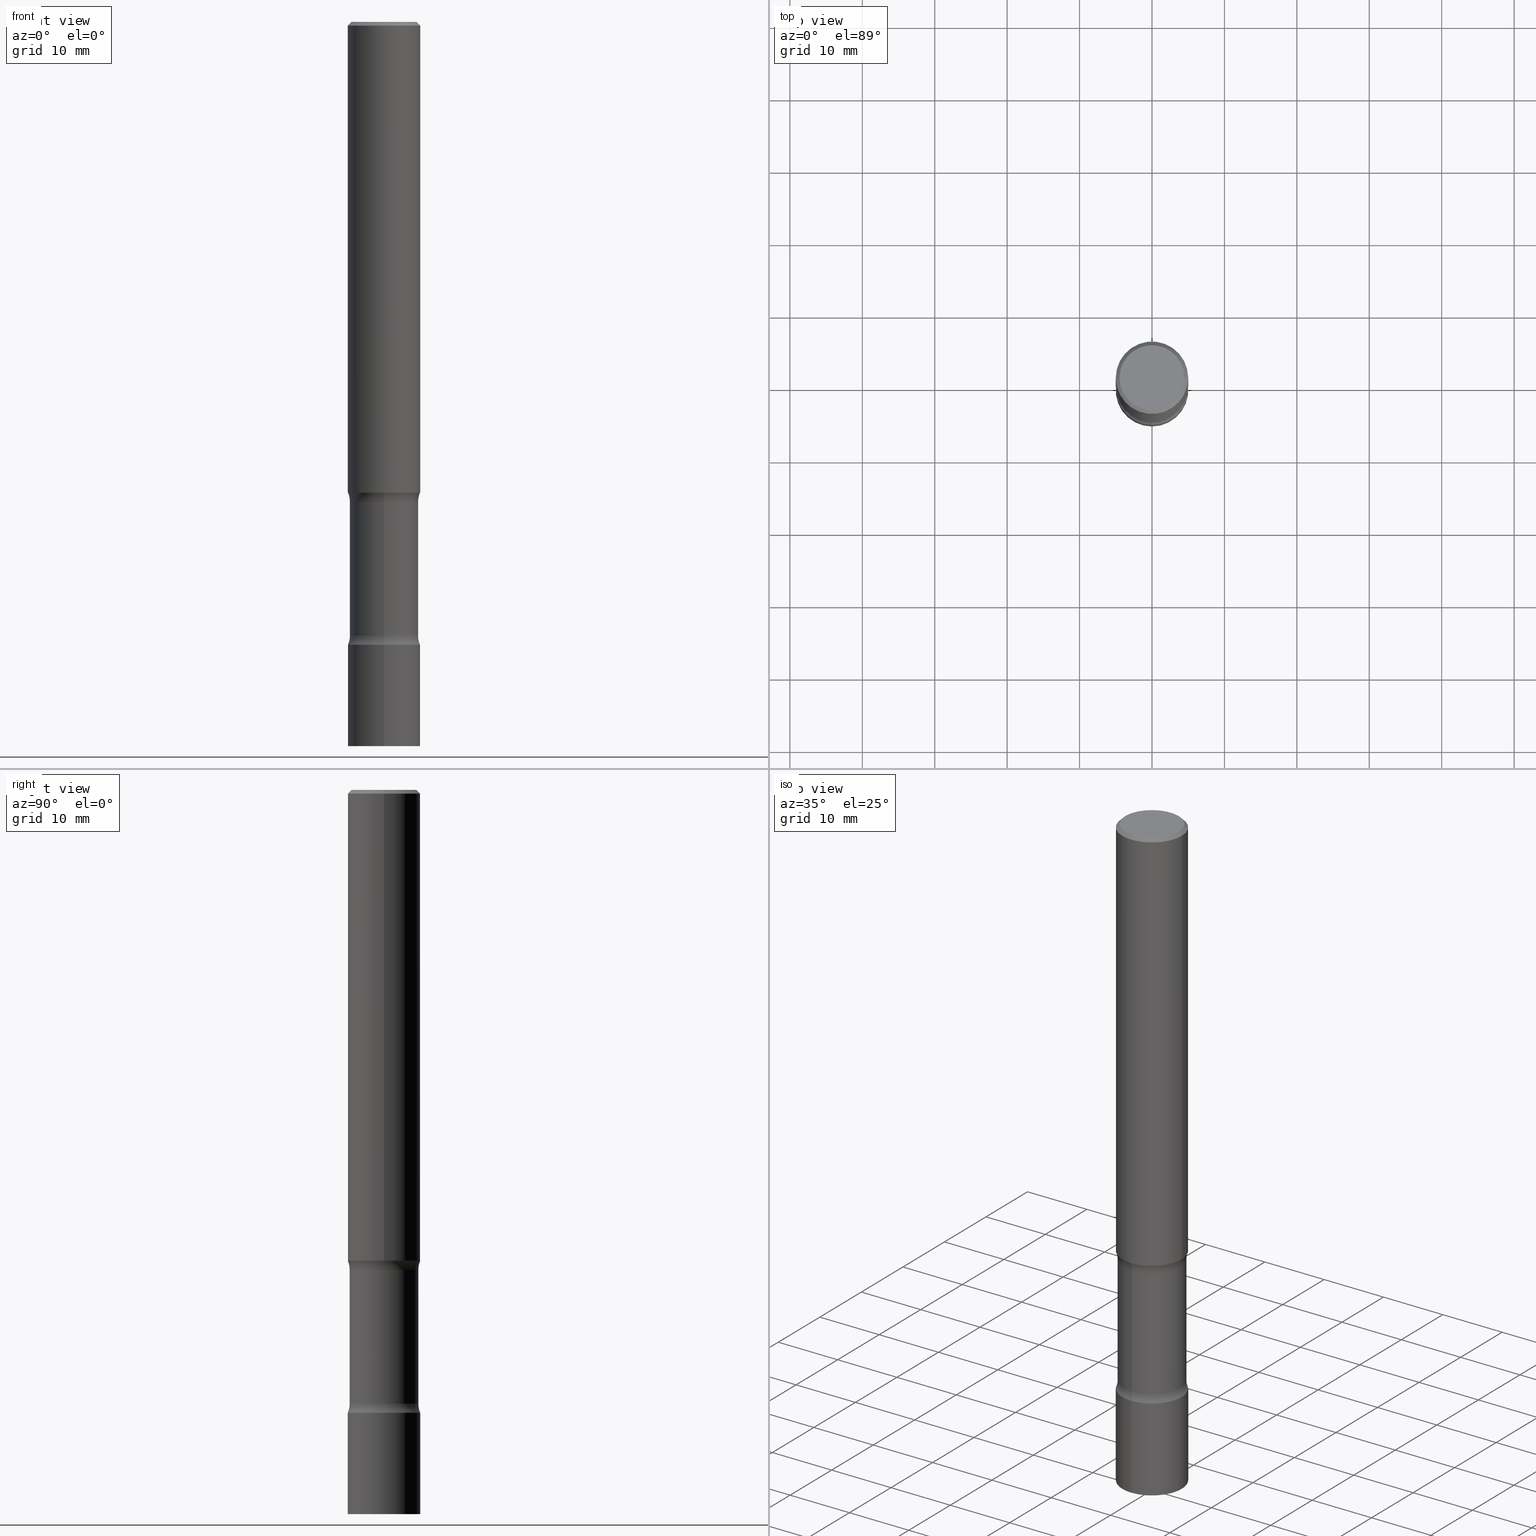
[diagram: canonical four-view strip — front | top / right | iso, engineering-drawing reading convention]
A machine part, canonical four-view strip (front | top / right | iso — engineering-drawing reading convention). The complete STEP part file that produces these views, byte-faithful:
ISO-10303-21;
HEADER;
FILE_DESCRIPTION (( 'STEP AP203' ),
    '1' );
FILE_NAME ('42708.STEP',
    '2024-03-11T13:32:15',
    ( '' ),
    ( '' ),
    'SwSTEP 2.0',
    'SolidWorks 2023',
    '' );
FILE_SCHEMA (( 'CONFIG_CONTROL_DESIGN' ));
ENDSEC;

DATA;
#1 = TOROIDAL_SURFACE ( 'NONE', #369, 0.3116500000000000936, 0.1249999999999999584 ) ;
#2 = ORIENTED_EDGE ( 'NONE', *, *, #324, .T. ) ;
#3 = DIRECTION ( 'NONE',  ( -6.982962677686265133E-15, -1.000000000000000000, 2.775563112689115906E-15 ) ) ;
#4 = DIRECTION ( 'NONE',  ( -2.444797603175308813E-29, 3.492442539755722065E-15, 1.000000000000000000 ) ) ;
#5 = DIRECTION ( 'NONE',  ( 2.621033774740748860E-29, -3.240062311334059652E-15, -1.000000000000000000 ) ) ;
#6 = APPROVAL_ROLE ( '' ) ;
#7 = CARTESIAN_POINT ( 'NONE',  ( 1.303369983790224529E-15, 0.1866499999999884918, -3.336343352317409749 ) ) ;
#8 = ADVANCED_FACE ( 'NONE', ( #278 ), #115, .T. ) ;
#9 = CIRCLE ( 'NONE', #126, 0.1866500000000001769 ) ;
#10 = DIRECTION ( 'NONE',  ( 2.621033774740748860E-29, -3.240062311334059652E-15, -1.000000000000000000 ) ) ;
#11 = APPROVAL ( #339, 'UNSPECIFIED' ) ;
#12 = CYLINDRICAL_SURFACE ( 'NONE', #53, 0.1866500000000001769 ) ;
#13 = DIRECTION ( 'NONE',  ( 2.444797603175308253E-29, -3.492442539755722065E-15, -1.000000000000000000 ) ) ;
#14 = FACE_OUTER_BOUND ( 'NONE', #128, .T. ) ;
#15 = CLOSED_SHELL ( 'NONE', ( #106, #250, #8, #435, #486, #499 ) ) ;
#16 = CIRCLE ( 'NONE', #301, 0.1968499999999997752 ) ;
#17 = AXIS2_PLACEMENT_3D ( 'NONE', #262, #104, #299 ) ;
#18 = DIRECTION ( 'NONE',  ( 2.621033774740748860E-29, -3.240062311334059652E-15, -1.000000000000000000 ) ) ;
#19 = DIRECTION ( 'NONE',  ( 2.621033774740748860E-29, -3.240062311334059652E-15, -1.000000000000000000 ) ) ;
#20 = ORIENTED_EDGE ( 'NONE', *, *, #229, .T. ) ;
#21 = ORIENTED_EDGE ( 'NONE', *, *, #199, .T. ) ;
#22 = UNCERTAINTY_MEASURE_WITH_UNIT (LENGTH_MEASURE( 1.000000000000000082E-05 ), #40, 'distance_accuracy_value', 'NONE');
#23 = MANIFOLD_SOLID_BREP ( 'Body-Move/Copy2[1]', #400 ) ;
#24 = CIRCLE ( 'NONE', #449, 0.1968500000000000250 ) ;
#25 = LOCAL_TIME ( 9, 32, 15.00000000000000000, #462 ) ;
#26 = DIRECTION ( 'NONE',  ( 6.982962677686265922E-15, 1.000000000000000000, -3.240062311334059652E-15 ) ) ;
#27 = VERTEX_POINT ( 'NONE', #281 ) ;
#28 = EDGE_CURVE ( 'NONE', #130, #223, #368, .T. ) ;
#29 = PERSON_AND_ORGANIZATION ( #274, #303 ) ;
#30 = ORIENTED_EDGE ( 'NONE', *, *, #111, .F. ) ;
#31 = EDGE_CURVE ( 'NONE', #295, #27, #45, .T. ) ;
#32 = DIRECTION ( 'NONE',  ( -1.000000000000000000, 6.982962677686265922E-15, -4.883557194083112340E-29 ) ) ;
#33 = APPROVAL_DATE_TIME ( #384, #11 ) ;
#34 = ORIENTED_EDGE ( 'NONE', *, *, #127, .F. ) ;
#35 = VERTEX_POINT ( 'NONE', #7 ) ;
#36 = CARTESIAN_POINT ( 'NONE',  ( -0.1968499999999997752, 1.304766576325677127E-15, -0.02000000000000000042 ) ) ;
#37 = CIRCLE ( 'NONE', #466, 0.1968500000000000250 ) ;
#38 = ORIENTED_EDGE ( 'NONE', *, *, #167, .T. ) ;
#39 = DIRECTION ( 'NONE',  ( -2.444797603175308533E-29, 3.492442539755722065E-15, 1.000000000000000000 ) ) ;
#40 =( CONVERSION_BASED_UNIT ( 'INCH', #69 ) LENGTH_UNIT ( ) NAMED_UNIT ( #60 ) );
#41 = DIRECTION ( 'NONE',  ( 2.621033774740748860E-29, -3.240062311334059652E-15, -1.000000000000000000 ) ) ;
#42 = CARTESIAN_POINT ( 'NONE',  ( -0.1968500000000000250, -3.103561811094477015E-15, -2.559000000000000163 ) ) ;
#43 = ORIENTED_EDGE ( 'NONE', *, *, #324, .F. ) ;
#44 = DIRECTION ( 'NONE',  ( -0.7071067811865466846, 2.468850131082247989E-15, -0.7071067811865483499 ) ) ;
#45 = LINE ( 'NONE', #356, #183 ) ;
#46 = VECTOR ( 'NONE', #358, 39.37007874015748143 ) ;
#47 = DIRECTION ( 'NONE',  ( -6.982962677686265133E-15, -1.000000000000000000, 3.492442539755722065E-15 ) ) ;
#48 = AXIS2_PLACEMENT_3D ( 'NONE', #194, #39, #110 ) ;
#49 = AXIS2_PLACEMENT_3D ( 'NONE', #296, #490, #96 ) ;
#50 = FACE_OUTER_BOUND ( 'NONE', #171, .T. ) ;
#51 = DIRECTION ( 'NONE',  ( -6.982962677686265922E-15, -1.000000000000000000, 3.240062311334059652E-15 ) ) ;
#52 = CARTESIAN_POINT ( 'NONE',  ( 8.158923594815371171E-29, -1.164878055458961624E-14, -3.336343352317409305 ) ) ;
#53 = AXIS2_PLACEMENT_3D ( 'NONE', #367, #5, #317 ) ;
#54 = PERSON_AND_ORGANIZATION ( #274, #303 ) ;
#55 = CARTESIAN_POINT ( 'NONE',  ( -1.374596203102541608E-15, -0.1968500000000000527, 6.874873139509140427E-16 ) ) ;
#56 = ORIENTED_EDGE ( 'NONE', *, *, #362, .T. ) ;
#57 = ORIENTED_EDGE ( 'NONE', *, *, #202, .F. ) ;
#58 = LINE ( 'NONE', #55, #248 ) ;
#59 = ORIENTED_EDGE ( 'NONE', *, *, #199, .F. ) ;
#60 = DIMENSIONAL_EXPONENTS ( 1.000000000000000000, 0.000000000000000000, 0.000000000000000000, 0.000000000000000000, 0.000000000000000000, 0.000000000000000000, 0.000000000000000000 ) ;
#61 = AXIS2_PLACEMENT_3D ( 'NONE', #143, #271, #425 ) ;
#62 = APPROVAL_PERSON_ORGANIZATION ( #468, #375, #309 ) ;
#63 = APPROVAL_DATE_TIME ( #396, #375 ) ;
#64 = EDGE_LOOP ( 'NONE', ( #342, #230 ) ) ;
#65 = CYLINDRICAL_SURFACE ( 'NONE', #109, 0.1866500000000001769 ) ;
#66 = APPLICATION_PROTOCOL_DEFINITION ( 'international standard', 'config_control_design', 1994, #357 ) ;
#67 = ORIENTED_EDGE ( 'NONE', *, *, #297, .T. ) ;
#68 = CARTESIAN_POINT ( 'NONE',  ( 8.277595724830961371E-29, -1.182471195110492676E-14, -3.385800000000000587 ) ) ;
#69 = LENGTH_MEASURE_WITH_UNIT ( LENGTH_MEASURE( 0.02539999999999999897 ), #305 );
#70 = DIRECTION ( 'NONE',  ( 2.621033774740748860E-29, -3.240062311334059652E-15, -1.000000000000000000 ) ) ;
#71 = CIRCLE ( 'NONE', #495, 0.1866500000000001769 ) ;
#72 = CARTESIAN_POINT ( 'NONE',  ( 0.000000000000000000, 0.000000000000000000, 0.000000000000000000 ) ) ;
#73 = APPROVAL_PERSON_ORGANIZATION ( #197, #411, #6 ) ;
#74 = ORIENTED_EDGE ( 'NONE', *, *, #221, .T. ) ;
#75 = CARTESIAN_POINT ( 'NONE',  ( 4.890937612370273159E-31, -6.982962677686291609E-17, -0.02000000000000000042 ) ) ;
#76 = APPROVAL_STATUS ( 'not_yet_approved' ) ;
#77 = CC_DESIGN_PERSON_AND_ORGANIZATION_ASSIGNMENT ( #175, #434, ( #418 ) ) ;
#78 = DIRECTION ( 'NONE',  ( -2.445468806185136597E-29, 3.491481338843145583E-15, 1.000000000000000000 ) ) ;
#79 = DIRECTION ( 'NONE',  ( 1.000000000000000000, -6.860497997771530774E-15, 4.843877874696980173E-29 ) ) ;
#80 = CARTESIAN_POINT ( 'NONE',  ( 0.1968499999999997752, -1.420318657638187347E-15, -0.02000000000000000042 ) ) ;
#81 = CARTESIAN_POINT ( 'NONE',  ( -0.1968499999999997752, 1.304766576325677127E-15, -0.02000000000000000042 ) ) ;
#82 = AXIS2_PLACEMENT_3D ( 'NONE', #225, #32, #459 ) ;
#83 = AXIS2_PLACEMENT_3D ( 'NONE', #72, #464, #275 ) ;
#84 = CARTESIAN_POINT ( 'NONE',  ( 8.277595724830961371E-29, -1.182471195110492676E-14, -3.385800000000000587 ) ) ;
#85 = DIRECTION ( 'NONE',  ( -2.445468806185136597E-29, 3.491481338843145583E-15, 1.000000000000000000 ) ) ;
#86 = DIRECTION ( 'NONE',  ( 2.445468806185136597E-29, -3.491481338843145583E-15, -1.000000000000000000 ) ) ;
#87 = CIRCLE ( 'NONE', #207, 0.1249999999999999584 ) ;
#88 = LOCAL_TIME ( 9, 32, 15.00000000000000000, #131 ) ;
#89 = EDGE_CURVE ( 'NONE', #485, #133, #323, .T. ) ;
#90 = DIRECTION ( 'NONE',  ( 6.982962677686265922E-15, 1.000000000000000000, -2.775563112689113145E-15 ) ) ;
#91 = VERTEX_POINT ( 'NONE', #81 ) ;
#92 = ORIENTED_EDGE ( 'NONE', *, *, #89, .F. ) ;
#93 = CC_DESIGN_PERSON_AND_ORGANIZATION_ASSIGNMENT ( #353, #270, ( #247 ) ) ;
#94 = LINE ( 'NONE', #325, #408 ) ;
#95 = ORIENTED_EDGE ( 'NONE', *, *, #229, .F. ) ;
#96 = DIRECTION ( 'NONE',  ( -1.000000000000000000, 6.982962677686265922E-15, -4.876176775795935793E-29 ) ) ;
#97 = VERTEX_POINT ( 'NONE', #348 ) ;
#98 = MECHANICAL_CONTEXT ( 'NONE', #357, 'mechanical' ) ;
#99 = VERTEX_POINT ( 'NONE', #403 ) ;
#100 = CARTESIAN_POINT ( 'NONE',  ( 4.890937612370273159E-31, -6.982962677686291609E-17, -0.02000000000000000042 ) ) ;
#101 = ORIENTED_EDGE ( 'NONE', *, *, #257, .F. ) ;
#102 = CARTESIAN_POINT ( 'NONE',  ( 9.722309541468059850E-29, -1.361063429711225876E-14, -3.937000000000000277 ) ) ;
#103 = FACE_OUTER_BOUND ( 'NONE', #211, .T. ) ;
#104 = DIRECTION ( 'NONE',  ( -2.445468806185136597E-29, 3.491481338843145583E-15, 1.000000000000000000 ) ) ;
#105 = DIRECTION ( 'NONE',  ( 1.000000000000000000, -6.982962677686267499E-15, 0.000000000000000000 ) ) ;
#106 = ADVANCED_FACE ( 'NONE', ( #460 ), #502, .T. ) ;
#107 = VECTOR ( 'NONE', #44, 39.37007874015748143 ) ;
#108 =( NAMED_UNIT ( * ) SI_UNIT ( $, .STERADIAN. ) SOLID_ANGLE_UNIT ( ) );
#109 = AXIS2_PLACEMENT_3D ( 'NONE', #102, #429, #209 ) ;
#110 = DIRECTION ( 'NONE',  ( -6.982962677686265133E-15, -1.000000000000000000, 2.775563112689116301E-15 ) ) ;
#111 = EDGE_CURVE ( 'NONE', #151, #226, #94, .T. ) ;
#112 = ORIENTED_EDGE ( 'NONE', *, *, #297, .F. ) ;
#113 = EDGE_CURVE ( 'NONE', #298, #130, #9, .T. ) ;
#114 = DIRECTION ( 'NONE',  ( -2.445468806185136597E-29, 3.491481338843145583E-15, 1.000000000000000000 ) ) ;
#115 = CONICAL_SURFACE ( 'NONE', #181, 0.1968499999999997752, 0.7853981633974471688 ) ;
#116 = CIRCLE ( 'NONE', #422, 0.1249999999999999306 ) ;
#117 =( GEOMETRIC_REPRESENTATION_CONTEXT ( 3 ) GLOBAL_UNCERTAINTY_ASSIGNED_CONTEXT ( ( #22 ) ) GLOBAL_UNIT_ASSIGNED_CONTEXT ( ( #40, #267, #108 ) ) REPRESENTATION_CONTEXT ( 'NONE', 'WORKASPACE' ) );
#118 = EDGE_CURVE ( 'NONE', #133, #226, #349, .T. ) ;
#119 = DIRECTION ( 'NONE',  ( 6.982962677686266711E-15, 1.000000000000000000, -2.927241354046890727E-15 ) ) ;
#120 = CARTESIAN_POINT ( 'NONE',  ( -1.043851414335219820E-46, 1.490343170380447200E-32, 4.268512490100411279E-18 ) ) ;
#121 = AXIS2_PLACEMENT_3D ( 'NONE', #100, #86, #366 ) ;
#122 = CARTESIAN_POINT ( 'NONE',  ( 9.627810689950883669E-29, -1.374596203102546341E-14, -3.937000000000000277 ) ) ;
#123 = DIRECTION ( 'NONE',  ( 2.621033774740748860E-29, -3.240062311334059652E-15, -1.000000000000000000 ) ) ;
#124 = DIRECTION ( 'NONE',  ( 2.621033774740748860E-29, -3.240062311334059652E-15, -1.000000000000000000 ) ) ;
#125 = ORIENTED_EDGE ( 'NONE', *, *, #473, .F. ) ;
#126 = AXIS2_PLACEMENT_3D ( 'NONE', #328, #124, #266 ) ;
#127 = EDGE_CURVE ( 'NONE', #176, #91, #228, .T. ) ;
#128 = EDGE_LOOP ( 'NONE', ( #345, #265, #427, #340 ) ) ;
#129 = DIRECTION ( 'NONE',  ( 6.982962677686265922E-15, 1.000000000000000000, -3.240062311334059652E-15 ) ) ;
#130 = VERTEX_POINT ( 'NONE', #507 ) ;
#131 = COORDINATED_UNIVERSAL_TIME_OFFSET ( 5, 0, .BEHIND. ) ;
#132 = ORIENTED_EDGE ( 'NONE', *, *, #338, .T. ) ;
#133 = VERTEX_POINT ( 'NONE', #279 ) ;
#134 = AXIS2_PLACEMENT_3D ( 'NONE', #428, #195, #316 ) ;
#135 = APPROVAL_PERSON_ORGANIZATION ( #29, #11, #492 ) ;
#136 = DIRECTION ( 'NONE',  ( 6.982962677686265133E-15, 1.000000000000000000, -2.775563112689115906E-15 ) ) ;
#137 = ADVANCED_BREP_SHAPE_REPRESENTATION ( '42708', ( #23, #376, #188, #83 ), #117 ) ;
#138 = ORIENTED_EDGE ( 'NONE', *, *, #383, .F. ) ;
#139 = ORIENTED_EDGE ( 'NONE', *, *, #118, .T. ) ;
#140 = DIRECTION ( 'NONE',  ( 6.982962677686266711E-15, 1.000000000000000000, -2.927241354046890727E-15 ) ) ;
#141 = DIRECTION ( 'NONE',  ( 6.982962677686265922E-15, 1.000000000000000000, -2.775563112689113145E-15 ) ) ;
#142 = APPLICATION_PROTOCOL_DEFINITION ( 'international standard', 'config_control_design', 1994, #481 ) ;
#143 = CARTESIAN_POINT ( 'NONE',  ( 0.000000000000000000, 0.000000000000000000, 0.000000000000000000 ) ) ;
#144 = ORIENTED_EDGE ( 'NONE', *, *, #383, .T. ) ;
#145 = CARTESIAN_POINT ( 'NONE',  ( -0.1768499999999998129, 1.269851762937246069E-15, 4.268512490091652920E-18 ) ) ;
#146 = DIRECTION ( 'NONE',  ( 2.621033774740748860E-29, -3.240062311334059652E-15, -1.000000000000000000 ) ) ;
#147 = DIRECTION ( 'NONE',  ( 2.621033774740748860E-29, -3.240062311334059652E-15, -1.000000000000000000 ) ) ;
#148 = AXIS2_PLACEMENT_3D ( 'NONE', #68, #190, #136 ) ;
#149 = AXIS2_PLACEMENT_3D ( 'NONE', #166, #210, #51 ) ;
#150 = CARTESIAN_POINT ( 'NONE',  ( 4.890937612370273159E-31, -6.982962677686291609E-17, -0.02000000000000000042 ) ) ;
#151 = VERTEX_POINT ( 'NONE', #277 ) ;
#152 = FACE_OUTER_BOUND ( 'NONE', #397, .T. ) ;
#153 = CARTESIAN_POINT ( 'NONE',  ( 4.890937612370273159E-31, -6.982962677686291609E-17, -0.02000000000000000042 ) ) ;
#154 = ADVANCED_FACE ( 'NONE', ( #308 ), #436, .F. ) ;
#155 = CARTESIAN_POINT ( 'NONE',  ( 2.176240318500987949E-15, 0.3116499999999908788, -2.608456647682592777 ) ) ;
#156 = COORDINATED_UNIVERSAL_TIME_OFFSET ( 5, 0, .BEHIND. ) ;
#157 = CARTESIAN_POINT ( 'NONE',  ( 1.303369983790205202E-15, 0.1866499999999908510, -2.608456647682592333 ) ) ;
#158 = CIRCLE ( 'NONE', #260, 0.1968500000000000527 ) ;
#159 = ADVANCED_FACE ( 'NONE', ( #238 ), #503, .F. ) ;
#160 = CARTESIAN_POINT ( 'NONE',  ( 6.240152543836834912E-29, -9.306071052295215238E-15, -2.608456647682591889 ) ) ;
#161 = CC_DESIGN_PERSON_AND_ORGANIZATION_ASSIGNMENT ( #288, #364, ( #445 ) ) ;
#162 = CARTESIAN_POINT ( 'NONE',  ( 0.000000000000000000, 0.000000000000000000, 0.000000000000000000 ) ) ;
#163 = VECTOR ( 'NONE', #273, 39.37007874015748143 ) ;
#164 = AXIS2_PLACEMENT_3D ( 'NONE', #387, #146, #140 ) ;
#165 = DIRECTION ( 'NONE',  ( -6.982962677686265133E-15, -1.000000000000000000, 2.775563112689116301E-15 ) ) ;
#166 = CARTESIAN_POINT ( 'NONE',  ( 8.279868283981637835E-29, -1.182145751705512531E-14, -3.385800000000000587 ) ) ;
#167 = EDGE_CURVE ( 'NONE', #295, #391, #377, .T. ) ;
#168 = DIRECTION ( 'NONE',  ( 2.621033774740748860E-29, -3.240062311334059652E-15, -1.000000000000000000 ) ) ;
#169 = ORIENTED_EDGE ( 'NONE', *, *, #338, .F. ) ;
#170 = EDGE_CURVE ( 'NONE', #176, #151, #196, .T. ) ;
#171 = EDGE_LOOP ( 'NONE', ( #259, #332 ) ) ;
#172 = VECTOR ( 'NONE', #352, 39.37007874015748143 ) ;
#173 = AXIS2_PLACEMENT_3D ( 'NONE', #370, #18, #373 ) ;
#174 = EDGE_LOOP ( 'NONE', ( #337, #56 ) ) ;
#175 = PERSON_AND_ORGANIZATION ( #274, #303 ) ;
#176 = VERTEX_POINT ( 'NONE', #145 ) ;
#177 = DIRECTION ( 'NONE',  ( 1.000000000000000000, -6.982962677686266711E-15, 0.000000000000000000 ) ) ;
#178 = CARTESIAN_POINT ( 'NONE',  ( 6.257954675027765161E-29, -8.934700746099610252E-15, -2.559000000000000163 ) ) ;
#179 = EDGE_CURVE ( 'NONE', #99, #498, #432, .T. ) ;
#180 = EDGE_LOOP ( 'NONE', ( #258, #67, #310, #169 ) ) ;
#181 = AXIS2_PLACEMENT_3D ( 'NONE', #150, #233, #437 ) ;
#182 = ORIENTED_EDGE ( 'NONE', *, *, #187, .T. ) ;
#183 = VECTOR ( 'NONE', #4, 39.37007874015748143 ) ;
#184 = CIRCLE ( 'NONE', #333, 0.1968500000000002470 ) ;
#185 = DIRECTION ( 'NONE',  ( -2.444797603175308533E-29, 3.492442539755722065E-15, 1.000000000000000000 ) ) ;
#186 = DIRECTION ( 'NONE',  ( -2.438088387897960049E-29, 3.491481338843145188E-15, 1.000000000000000000 ) ) ;
#187 = EDGE_CURVE ( 'NONE', #130, #219, #438, .T. ) ;
#188 = MANIFOLD_SOLID_BREP ( 'Body-Move/Copy2[4]', #237 ) ;
#189 = ORIENTED_EDGE ( 'NONE', *, *, #451, .F. ) ;
#190 = DIRECTION ( 'NONE',  ( 2.621033774740748860E-29, -3.240062311334059652E-15, -1.000000000000000000 ) ) ;
#191 = COORDINATED_UNIVERSAL_TIME_OFFSET ( 5, 0, .BEHIND. ) ;
#192 = PRODUCT_RELATED_PRODUCT_CATEGORY ( 'detail', '', ( #418 ) ) ;
#193 = ORIENTED_EDGE ( 'NONE', *, *, #483, .T. ) ;
#194 = CARTESIAN_POINT ( 'NONE',  ( 9.625168163701189876E-29, -1.374974627901827809E-14, -3.937000000000000277 ) ) ;
#195 = DIRECTION ( 'NONE',  ( 2.621033774740748860E-29, -3.240062311334059652E-15, -1.000000000000000000 ) ) ;
#196 = CIRCLE ( 'NONE', #246, 0.1768499999999998129 ) ;
#197 = PERSON_AND_ORGANIZATION ( #274, #303 ) ;
#198 = PERSON_AND_ORGANIZATION_ROLE ( 'creator' ) ;
#199 = EDGE_CURVE ( 'NONE', #498, #35, #456, .T. ) ;
#200 = DIRECTION ( 'NONE',  ( 6.982962677686266711E-15, 1.000000000000000000, -2.927241354046890727E-15 ) ) ;
#201 = AXIS2_PLACEMENT_3D ( 'NONE', #231, #147, #141 ) ;
#202 = EDGE_CURVE ( 'NONE', #223, #97, #444, .T. ) ;
#203 = CC_DESIGN_DATE_AND_TIME_ASSIGNMENT ( #421, #218, ( #247 ) ) ;
#204 = FACE_OUTER_BOUND ( 'NONE', #180, .T. ) ;
#205 = LINE ( 'NONE', #206, #424 ) ;
#206 = CARTESIAN_POINT ( 'NONE',  ( 1.303369983790240109E-15, 0.1866499999999865489, -3.937000000000000721 ) ) ;
#207 = AXIS2_PLACEMENT_3D ( 'NONE', #363, #284, #245 ) ;
#208 = CONICAL_SURFACE ( 'NONE', #121, 0.1968499999999997752, 0.7853981633974471688 ) ;
#209 = DIRECTION ( 'NONE',  ( 6.982962677686266711E-15, 1.000000000000000000, -2.927241354046890727E-15 ) ) ;
#210 = DIRECTION ( 'NONE',  ( -2.621033774740748860E-29, 3.240062311334059652E-15, 1.000000000000000000 ) ) ;
#211 = EDGE_LOOP ( 'NONE', ( #306, #212, #132, #59 ) ) ;
#212 = ORIENTED_EDGE ( 'NONE', *, *, #314, .T. ) ;
#213 = ADVANCED_FACE ( 'NONE', ( #461 ), #319, .F. ) ;
#214 = CARTESIAN_POINT ( 'NONE',  ( 6.235826419837508571E-29, -9.312266308089938216E-15, -2.608456647682591889 ) ) ;
#215 = EDGE_LOOP ( 'NONE', ( #312, #38, #193, #253 ) ) ;
#216 = EDGE_CURVE ( 'NONE', #489, #27, #158, .T. ) ;
#217 = AXIS2_PLACEMENT_3D ( 'NONE', #430, #388, #501 ) ;
#218 = DATE_TIME_ROLE ( 'creation_date' ) ;
#219 = VERTEX_POINT ( 'NONE', #346 ) ;
#220 = FACE_OUTER_BOUND ( 'NONE', #417, .T. ) ;
#221 = EDGE_CURVE ( 'NONE', #226, #91, #239, .T. ) ;
#222 = CALENDAR_DATE ( 2024, 11, 3 ) ;
#223 = VERTEX_POINT ( 'NONE', #395 ) ;
#224 = EDGE_LOOP ( 'NONE', ( #101, #426, #139, #95 ) ) ;
#225 = CARTESIAN_POINT ( 'NONE',  ( 2.176240318501006882E-15, 0.3116499999999883808, -3.336343352317410194 ) ) ;
#226 = VERTEX_POINT ( 'NONE', #80 ) ;
#227 = AXIS2_PLACEMENT_3D ( 'NONE', #463, #70, #392 ) ;
#228 = LINE ( 'NONE', #36, #107 ) ;
#229 = EDGE_CURVE ( 'NONE', #91, #226, #16, .T. ) ;
#230 = ORIENTED_EDGE ( 'NONE', *, *, #335, .T. ) ;
#231 = CARTESIAN_POINT ( 'NONE',  ( 6.110524999875308608E-29, -9.145828432093924817E-15, -2.559000000000000163 ) ) ;
#232 = CALENDAR_DATE ( 2024, 11, 3 ) ;
#233 = DIRECTION ( 'NONE',  ( 2.445468806185136597E-29, -3.491481338843145583E-15, -1.000000000000000000 ) ) ;
#234 = DIRECTION ( 'NONE',  ( 1.000000000000000000, -6.982962677686266711E-15, 4.875932113059883053E-29 ) ) ;
#235 = DIRECTION ( 'NONE',  ( 6.860497997771529985E-15, 1.000000000000000000, 0.000000000000000000 ) ) ;
#236 = ADVANCED_FACE ( 'NONE', ( #103 ), #1, .F. ) ;
#237 = CLOSED_SHELL ( 'NONE', ( #389, #236, #476, #213, #154, #407, #402, #311 ) ) ;
#238 = FACE_OUTER_BOUND ( 'NONE', #64, .T. ) ;
#239 = CIRCLE ( 'NONE', #272, 0.1968499999999997752 ) ;
#240 = PERSON_AND_ORGANIZATION_ROLE ( 'classification_officer' ) ;
#241 = TOROIDAL_SURFACE ( 'NONE', #354, 0.3116500000000001491, 0.1249999999999999306 ) ;
#242 = DIRECTION ( 'NONE',  ( -6.982962677686265133E-15, -1.000000000000000000, 2.775563112689115906E-15 ) ) ;
#243 = CARTESIAN_POINT ( 'NONE',  ( 9.625168163701189876E-29, -1.374974627901827809E-14, -3.937000000000000277 ) ) ;
#244 = PERSON_AND_ORGANIZATION ( #274, #303 ) ;
#245 = DIRECTION ( 'NONE',  ( 6.860497997771529985E-15, 1.000000000000000000, 0.000000000000000000 ) ) ;
#246 = AXIS2_PLACEMENT_3D ( 'NONE', #355, #78, #234 ) ;
#247 = PRODUCT_DEFINITION ( 'UNKNOWN', '', #445, #458 ) ;
#248 = VECTOR ( 'NONE', #393, 39.37007874015748143 ) ;
#249 = CARTESIAN_POINT ( 'NONE',  ( -0.1968499999999999139, 1.398703375343756604E-15, -9.682923725166778072E-30 ) ) ;
#250 = ADVANCED_FACE ( 'NONE', ( #494 ), #208, .T. ) ;
#251 = DIRECTION ( 'NONE',  ( 0.7071067811865466846, -7.319954787623252890E-15, -0.7071067811865483499 ) ) ;
#252 = AXIS2_PLACEMENT_3D ( 'NONE', #162, #320, #47 ) ;
#253 = ORIENTED_EDGE ( 'NONE', *, *, #335, .F. ) ;
#254 = CC_DESIGN_APPROVAL ( #411, ( #390 ) ) ;
#255 = EDGE_LOOP ( 'NONE', ( #500, #268, #74, #34 ) ) ;
#256 = FACE_OUTER_BOUND ( 'NONE', #419, .T. ) ;
#257 = EDGE_CURVE ( 'NONE', #485, #91, #442, .T. ) ;
#258 = ORIENTED_EDGE ( 'NONE', *, *, #187, .F. ) ;
#259 = ORIENTED_EDGE ( 'NONE', *, *, #365, .F. ) ;
#260 = AXIS2_PLACEMENT_3D ( 'NONE', #315, #185, #3 ) ;
#261 = LOCAL_TIME ( 9, 32, 15.00000000000000000, #156 ) ;
#262 = CARTESIAN_POINT ( 'NONE',  ( 0.000000000000000000, 0.000000000000000000, 0.000000000000000000 ) ) ;
#263 = ORIENTED_EDGE ( 'NONE', *, *, #282, .F. ) ;
#264 = CC_DESIGN_DATE_AND_TIME_ASSIGNMENT ( #447, #484, ( #390 ) ) ;
#265 = ORIENTED_EDGE ( 'NONE', *, *, #31, .T. ) ;
#266 = DIRECTION ( 'NONE',  ( 6.982962677686266711E-15, 1.000000000000000000, -2.927241354046890727E-15 ) ) ;
#267 =( NAMED_UNIT ( * ) PLANE_ANGLE_UNIT ( ) SI_UNIT ( $, .RADIAN. ) );
#268 = ORIENTED_EDGE ( 'NONE', *, *, #111, .T. ) ;
#269 = CARTESIAN_POINT ( 'NONE',  ( 0.1968499999999999139, -1.374596203102541017E-15, 9.598753983154295253E-30 ) ) ;
#270 = PERSON_AND_ORGANIZATION_ROLE ( 'creator' ) ;
#271 = DIRECTION ( 'NONE',  ( -2.445468806185136597E-29, 3.491481338843145583E-15, 1.000000000000000000 ) ) ;
#272 = AXIS2_PLACEMENT_3D ( 'NONE', #153, #433, #177 ) ;
#273 = DIRECTION ( 'NONE',  ( -2.445468806185136877E-29, 3.491481338843145188E-15, 1.000000000000000000 ) ) ;
#274 = PERSON ( 'UNSPECIFIED', 'UNSPECIFIED', 'UNSPECIFIED', ('UNSPECIFIED'), ('UNSPECIFIED'), ('UNSPECIFIED') ) ;
#275 = DIRECTION ( 'NONE',  ( 1.000000000000000000, 0.000000000000000000, 0.000000000000000000 ) ) ;
#276 = EDGE_LOOP ( 'NONE', ( #125, #57 ) ) ;
#277 = CARTESIAN_POINT ( 'NONE',  ( 0.1768499999999998129, -1.316798864272040563E-15, 4.268512490109333727E-18 ) ) ;
#278 = FACE_OUTER_BOUND ( 'NONE', #374, .T. ) ;
#279 = CARTESIAN_POINT ( 'NONE',  ( 0.1968500000000000250, -1.030929694920215344E-14, -2.559000000000000163 ) ) ;
#280 = COORDINATED_UNIVERSAL_TIME_OFFSET ( 5, 0, .BEHIND. ) ;
#281 = CARTESIAN_POINT ( 'NONE',  ( 1.398703375343853634E-15, 0.1968499999999882288, -3.385800000000001475 ) ) ;
#282 = EDGE_CURVE ( 'NONE', #133, #485, #24, .T. ) ;
#283 = CIRCLE ( 'NONE', #343, 0.1768499999999998129 ) ;
#284 = DIRECTION ( 'NONE',  ( 1.000000000000000000, -6.860497997771530774E-15, 4.843877874696980173E-29 ) ) ;
#285 = CIRCLE ( 'NONE', #173, 0.1968500000000000527 ) ;
#286 = LOCAL_TIME ( 9, 32, 15.00000000000000000, #280 ) ;
#287 = DIRECTION ( 'NONE',  ( 1.000000000000000000, -6.982962677686266711E-15, 4.875932113059883053E-29 ) ) ;
#288 = PERSON_AND_ORGANIZATION ( #274, #303 ) ;
#289 = DIRECTION ( 'NONE',  ( 1.000000000000000000, -6.982962677686267499E-15, 0.000000000000000000 ) ) ;
#290 = AXIS2_PLACEMENT_3D ( 'NONE', #480, #326, #452 ) ;
#291 = DIRECTION ( 'NONE',  ( 6.982962677686265922E-15, 1.000000000000000000, -3.492442539755722065E-15 ) ) ;
#292 = PLANE ( 'NONE',  #149 ) ;
#293 = CIRCLE ( 'NONE', #487, 0.1866500000000001769 ) ;
#294 = ORIENTED_EDGE ( 'NONE', *, *, #451, .T. ) ;
#295 = VERTEX_POINT ( 'NONE', #404 ) ;
#296 = CARTESIAN_POINT ( 'NONE',  ( 1.234936949548814815E-15, 0.1768499999999998129, -6.153342185293594620E-16 ) ) ;
#297 = EDGE_CURVE ( 'NONE', #130, #298, #293, .T. ) ;
#298 = VERTEX_POINT ( 'NONE', #157 ) ;
#299 = DIRECTION ( 'NONE',  ( 1.000000000000000000, -6.982962677686266711E-15, 4.876176775795935793E-29 ) ) ;
#300 = ORIENTED_EDGE ( 'NONE', *, *, #282, .T. ) ;
#301 = AXIS2_PLACEMENT_3D ( 'NONE', #75, #470, #341 ) ;
#302 = ORIENTED_EDGE ( 'NONE', *, *, #446, .F. ) ;
#303 = ORGANIZATION ( 'UNSPECIFIED', 'UNSPECIFIED', '' ) ;
#304 = CARTESIAN_POINT ( 'NONE',  ( 8.158923594815371171E-29, -1.164878055458961624E-14, -3.336343352317409305 ) ) ;
#305 =( LENGTH_UNIT ( ) NAMED_UNIT ( * ) SI_UNIT ( $, .METRE. ) );
#306 = ORIENTED_EDGE ( 'NONE', *, *, #179, .F. ) ;
#307 = ADVANCED_FACE ( 'NONE', ( #50 ), #440, .T. ) ;
#308 = FACE_OUTER_BOUND ( 'NONE', #276, .T. ) ;
#309 = APPROVAL_ROLE ( '' ) ;
#310 = ORIENTED_EDGE ( 'NONE', *, *, #446, .T. ) ;
#311 = ADVANCED_FACE ( 'NONE', ( #204 ), #12, .T. ) ;
#312 = ORIENTED_EDGE ( 'NONE', *, *, #31, .F. ) ;
#313 = CC_DESIGN_APPROVAL ( #375, ( #247 ) ) ;
#314 = EDGE_CURVE ( 'NONE', #99, #219, #87, .T. ) ;
#315 = CARTESIAN_POINT ( 'NONE',  ( 8.277595724830961371E-29, -1.182471195110492676E-14, -3.385800000000000587 ) ) ;
#316 = DIRECTION ( 'NONE',  ( 6.982962677686265922E-15, 1.000000000000000000, -3.240062311334059652E-15 ) ) ;
#317 = DIRECTION ( 'NONE',  ( 6.982962677686266711E-15, 1.000000000000000000, -2.927241354046890727E-15 ) ) ;
#318 = DATE_AND_TIME ( #359, #261 ) ;
#319 = TOROIDAL_SURFACE ( 'NONE', #227, 0.3116500000000001491, 0.1249999999999999306 ) ;
#320 = DIRECTION ( 'NONE',  ( -2.444797603175308533E-29, 3.492442539755722065E-15, 1.000000000000000000 ) ) ;
#321 = DIRECTION ( 'NONE',  ( -2.444797603175308533E-29, 3.492442539755722065E-15, 1.000000000000000000 ) ) ;
#322 = ADVANCED_FACE ( 'NONE', ( #475 ), #409, .T. ) ;
#323 = CIRCLE ( 'NONE', #331, 0.1968500000000000250 ) ;
#324 = EDGE_CURVE ( 'NONE', #298, #97, #116, .T. ) ;
#325 = CARTESIAN_POINT ( 'NONE',  ( 0.1968499999999997752, -1.420318657638187347E-15, -0.02000000000000000042 ) ) ;
#326 = DIRECTION ( 'NONE',  ( -2.444797603175308533E-29, 3.492442539755722065E-15, 1.000000000000000000 ) ) ;
#327 = CALENDAR_DATE ( 2024, 11, 3 ) ;
#328 = CARTESIAN_POINT ( 'NONE',  ( 6.240152543836834912E-29, -9.306071052295215238E-15, -2.608456647682591889 ) ) ;
#329 = ORIENTED_EDGE ( 'NONE', *, *, #221, .F. ) ;
#330 = FACE_OUTER_BOUND ( 'NONE', #174, .T. ) ;
#331 = AXIS2_PLACEMENT_3D ( 'NONE', #471, #439, #105 ) ;
#332 = ORIENTED_EDGE ( 'NONE', *, *, #167, .F. ) ;
#333 = AXIS2_PLACEMENT_3D ( 'NONE', #482, #123, #90 ) ;
#334 = CC_DESIGN_PERSON_AND_ORGANIZATION_ASSIGNMENT ( #244, #198, ( #445 ) ) ;
#335 = EDGE_CURVE ( 'NONE', #27, #489, #414, .T. ) ;
#336 = FACE_OUTER_BOUND ( 'NONE', #423, .T. ) ;
#337 = ORIENTED_EDGE ( 'NONE', *, *, #170, .T. ) ;
#338 = EDGE_CURVE ( 'NONE', #219, #35, #71, .T. ) ;
#339 = APPROVAL_STATUS ( 'not_yet_approved' ) ;
#340 = ORIENTED_EDGE ( 'NONE', *, *, #483, .F. ) ;
#341 = DIRECTION ( 'NONE',  ( 1.000000000000000000, -6.982962677686266711E-15, 0.000000000000000000 ) ) ;
#342 = ORIENTED_EDGE ( 'NONE', *, *, #216, .T. ) ;
#343 = AXIS2_PLACEMENT_3D ( 'NONE', #120, #85, #287 ) ;
#344 = AXIS2_PLACEMENT_3D ( 'NONE', #178, #186, #504 ) ;
#345 = ORIENTED_EDGE ( 'NONE', *, *, #365, .T. ) ;
#346 = CARTESIAN_POINT ( 'NONE',  ( -1.315500491072609724E-15, -0.1866500000000118620, -3.336343352317408861 ) ) ;
#347 = FACE_OUTER_BOUND ( 'NONE', #224, .T. ) ;
#348 = CARTESIAN_POINT ( 'NONE',  ( 1.374596203102604126E-15, 0.1968499999999910877, -2.559000000000000608 ) ) ;
#349 = LINE ( 'NONE', #269, #163 ) ;
#350 = CALENDAR_DATE ( 2024, 11, 3 ) ;
#351 = ORIENTED_EDGE ( 'NONE', *, *, #170, .F. ) ;
#352 = DIRECTION ( 'NONE',  ( 2.621033774740748860E-29, -3.240062311334059652E-15, -1.000000000000000000 ) ) ;
#353 = PERSON_AND_ORGANIZATION ( #274, #303 ) ;
#354 = AXIS2_PLACEMENT_3D ( 'NONE', #214, #416, #26 ) ;
#355 = CARTESIAN_POINT ( 'NONE',  ( -1.043851414335219820E-46, 1.490343170380447200E-32, 4.268512490100411279E-18 ) ) ;
#356 = CARTESIAN_POINT ( 'NONE',  ( 1.398703375343757393E-15, 0.1968500000000000527, -6.874873139509140427E-16 ) ) ;
#357 = APPLICATION_CONTEXT ( 'configuration controlled 3d designs of mechanical parts and assemblies' ) ;
#358 = DIRECTION ( 'NONE',  ( -2.445468806185136877E-29, 3.491481338843145188E-15, 1.000000000000000000 ) ) ;
#359 = CALENDAR_DATE ( 2024, 11, 3 ) ;
#360 = CARTESIAN_POINT ( 'NONE',  ( 8.147968180869435067E-29, -1.166446933090363476E-14, -3.336343352317409305 ) ) ;
#361 = SECURITY_CLASSIFICATION_LEVEL ( 'unclassified' ) ;
#362 = EDGE_CURVE ( 'NONE', #151, #176, #283, .T. ) ;
#363 = CARTESIAN_POINT ( 'NONE',  ( -2.138074201005416717E-15, -0.3116500000000117510, -3.336343352317407973 ) ) ;
#364 = PERSON_AND_ORGANIZATION_ROLE ( 'design_supplier' ) ;
#365 = EDGE_CURVE ( 'NONE', #391, #295, #37, .T. ) ;
#366 = DIRECTION ( 'NONE',  ( -1.000000000000000000, 6.982962677686266711E-15, 0.000000000000000000 ) ) ;
#367 = CARTESIAN_POINT ( 'NONE',  ( 9.722309541468059850E-29, -1.361063429711225876E-14, -3.937000000000000277 ) ) ;
#368 = CIRCLE ( 'NONE', #401, 0.1249999999999999306 ) ;
#369 = AXIS2_PLACEMENT_3D ( 'NONE', #304, #41, #467 ) ;
#370 = CARTESIAN_POINT ( 'NONE',  ( 8.277595724830961371E-29, -1.182471195110492676E-14, -3.385800000000000587 ) ) ;
#371 = LOCAL_TIME ( 9, 32, 15.00000000000000000, #191 ) ;
#372 = EDGE_LOOP ( 'NONE', ( #263, #92 ) ) ;
#373 = DIRECTION ( 'NONE',  ( 6.982962677686265133E-15, 1.000000000000000000, -2.775563112689115906E-15 ) ) ;
#374 = EDGE_LOOP ( 'NONE', ( #30, #351, #453, #20 ) ) ;
#375 = APPROVAL ( #76, 'UNSPECIFIED' ) ;
#376 = MANIFOLD_SOLID_BREP ( 'Body-Move/Copy2[2]', #15 ) ;
#377 = CIRCLE ( 'NONE', #48, 0.1968500000000000250 ) ;
#378 = ORIENTED_EDGE ( 'NONE', *, *, #202, .T. ) ;
#379 = CC_DESIGN_SECURITY_CLASSIFICATION ( #390, ( #445 ) ) ;
#380 = CC_DESIGN_PERSON_AND_ORGANIZATION_ASSIGNMENT ( #54, #240, ( #390 ) ) ;
#381 = CARTESIAN_POINT ( 'NONE',  ( -1.374596203102458975E-15, -0.1968500000000118488, -3.385800000000000143 ) ) ;
#382 = EDGE_LOOP ( 'NONE', ( #300, #457, #329, #386 ) ) ;
#383 = EDGE_CURVE ( 'NONE', #35, #219, #415, .T. ) ;
#384 = DATE_AND_TIME ( #222, #88 ) ;
#385 = ORIENTED_EDGE ( 'NONE', *, *, #179, .T. ) ;
#386 = ORIENTED_EDGE ( 'NONE', *, *, #118, .F. ) ;
#387 = CARTESIAN_POINT ( 'NONE',  ( 8.147968180869435067E-29, -1.166446933090363476E-14, -3.336343352317409305 ) ) ;
#388 = DIRECTION ( 'NONE',  ( 2.444797603175308253E-29, -3.492442539755722065E-15, -1.000000000000000000 ) ) ;
#389 = ADVANCED_FACE ( 'NONE', ( #152 ), #65, .T. ) ;
#390 = SECURITY_CLASSIFICATION ( '', '', #361 ) ;
#391 = VERTEX_POINT ( 'NONE', #506 ) ;
#392 = DIRECTION ( 'NONE',  ( 6.982962677686265922E-15, 1.000000000000000000, -3.240062311334059652E-15 ) ) ;
#393 = DIRECTION ( 'NONE',  ( -2.444797603175308813E-29, 3.492442539755722065E-15, 1.000000000000000000 ) ) ;
#394 = ORIENTED_EDGE ( 'NONE', *, *, #314, .F. ) ;
#395 = CARTESIAN_POINT ( 'NONE',  ( -1.350489030861266264E-15, -0.1968500000000093786, -2.558999999999999719 ) ) ;
#396 = DATE_AND_TIME ( #232, #25 ) ;
#397 = EDGE_LOOP ( 'NONE', ( #491, #182, #138, #302 ) ) ;
#398 = CARTESIAN_POINT ( 'NONE',  ( -1.280511951283960283E-15, -0.1866500000000138049, -3.936999999999999389 ) ) ;
#399 = CARTESIAN_POINT ( 'NONE',  ( -2.138074201005436044E-15, -0.3116500000000094195, -2.608456647682590557 ) ) ;
#400 = CLOSED_SHELL ( 'NONE', ( #469, #322, #159, #307 ) ) ;
#401 = AXIS2_PLACEMENT_3D ( 'NONE', #399, #79, #235 ) ;
#402 = ADVANCED_FACE ( 'NONE', ( #220 ), #410, .F. ) ;
#403 = CARTESIAN_POINT ( 'NONE',  ( -1.350489030861243387E-15, -0.1968500000000119043, -3.385800000000000143 ) ) ;
#404 = CARTESIAN_POINT ( 'NONE',  ( 1.398703375343846929E-15, 0.1968499999999862582, -3.937000000000000721 ) ) ;
#405 = SHAPE_DEFINITION_REPRESENTATION ( #448, #137 ) ;
#406 = DIRECTION ( 'NONE',  ( -2.444797603175308533E-29, 3.492442539755722065E-15, 1.000000000000000000 ) ) ;
#407 = ADVANCED_FACE ( 'NONE', ( #336 ), #292, .F. ) ;
#408 = VECTOR ( 'NONE', #251, 39.37007874015748143 ) ;
#409 = CYLINDRICAL_SURFACE ( 'NONE', #252, 0.1968500000000000527 ) ;
#410 = TOROIDAL_SURFACE ( 'NONE', #479, 0.3116500000000000936, 0.1249999999999999584 ) ;
#411 = APPROVAL ( #443, 'UNSPECIFIED' ) ;
#412 = DIRECTION ( 'NONE',  ( 2.621033774740748860E-29, -3.240062311334059652E-15, -1.000000000000000000 ) ) ;
#413 = PLANE ( 'NONE',  #49 ) ;
#414 = CIRCLE ( 'NONE', #477, 0.1968500000000000527 ) ;
#415 = CIRCLE ( 'NONE', #164, 0.1866500000000001769 ) ;
#416 = DIRECTION ( 'NONE',  ( 2.621033774740748860E-29, -3.240062311334059652E-15, -1.000000000000000000 ) ) ;
#417 = EDGE_LOOP ( 'NONE', ( #394, #189, #21, #144 ) ) ;
#418 = PRODUCT ( '42708', '42708', '', ( #98 ) ) ;
#419 = EDGE_LOOP ( 'NONE', ( #112, #493, #378, #43 ) ) ;
#420 = ORIENTED_EDGE ( 'NONE', *, *, #113, .F. ) ;
#421 = DATE_AND_TIME ( #350, #371 ) ;
#422 = AXIS2_PLACEMENT_3D ( 'NONE', #155, #474, #472 ) ;
#423 = EDGE_LOOP ( 'NONE', ( #294, #385 ) ) ;
#424 = VECTOR ( 'NONE', #19, 39.37007874015748143 ) ;
#425 = DIRECTION ( 'NONE',  ( 1.000000000000000000, -6.982962677686266711E-15, 4.876176775795935793E-29 ) ) ;
#426 = ORIENTED_EDGE ( 'NONE', *, *, #89, .T. ) ;
#427 = ORIENTED_EDGE ( 'NONE', *, *, #216, .F. ) ;
#428 = CARTESIAN_POINT ( 'NONE',  ( 6.257954675027765161E-29, -8.934700746099610252E-15, -2.559000000000000163 ) ) ;
#429 = DIRECTION ( 'NONE',  ( 2.621033774740748860E-29, -3.240062311334059652E-15, -1.000000000000000000 ) ) ;
#430 = CARTESIAN_POINT ( 'NONE',  ( 8.279868283981637835E-29, -1.182145751705512531E-14, -3.385800000000000587 ) ) ;
#431 = PLANE ( 'NONE',  #344 ) ;
#432 = CIRCLE ( 'NONE', #148, 0.1968500000000000527 ) ;
#433 = DIRECTION ( 'NONE',  ( -2.445468806185136597E-29, 3.491481338843145583E-15, 1.000000000000000000 ) ) ;
#434 = PERSON_AND_ORGANIZATION_ROLE ( 'design_owner' ) ;
#435 = ADVANCED_FACE ( 'NONE', ( #330 ), #413, .F. ) ;
#436 = PLANE ( 'NONE',  #134 ) ;
#437 = DIRECTION ( 'NONE',  ( -1.000000000000000000, 6.982962677686266711E-15, 0.000000000000000000 ) ) ;
#438 = LINE ( 'NONE', #398, #172 ) ;
#439 = DIRECTION ( 'NONE',  ( -2.445468806185136597E-29, 3.491481338843145583E-15, 1.000000000000000000 ) ) ;
#440 = PLANE ( 'NONE',  #465 ) ;
#441 = APPROVAL_DATE_TIME ( #318, #411 ) ;
#442 = LINE ( 'NONE', #249, #46 ) ;
#443 = APPROVAL_STATUS ( 'not_yet_approved' ) ;
#444 = CIRCLE ( 'NONE', #201, 0.1968500000000002470 ) ;
#445 = PRODUCT_DEFINITION_FORMATION_WITH_SPECIFIED_SOURCE ( 'ANY', '', #418, .NOT_KNOWN. ) ;
#446 = EDGE_CURVE ( 'NONE', #298, #35, #205, .T. ) ;
#447 = DATE_AND_TIME ( #327, #286 ) ;
#448 = PRODUCT_DEFINITION_SHAPE ( 'NONE', 'NONE',  #247 ) ;
#449 = AXIS2_PLACEMENT_3D ( 'NONE', #478, #114, #289 ) ;
#450 = ORIENTED_EDGE ( 'NONE', *, *, #473, .T. ) ;
#451 = EDGE_CURVE ( 'NONE', #498, #99, #285, .T. ) ;
#452 = DIRECTION ( 'NONE',  ( -6.982962677686265133E-15, -1.000000000000000000, 3.492442539755722065E-15 ) ) ;
#453 = ORIENTED_EDGE ( 'NONE', *, *, #127, .T. ) ;
#454 = EDGE_LOOP ( 'NONE', ( #505, #420, #2, #450 ) ) ;
#455 = CYLINDRICAL_SURFACE ( 'NONE', #17, 0.1968499999999999139 ) ;
#456 = CIRCLE ( 'NONE', #82, 0.1249999999999999584 ) ;
#457 = ORIENTED_EDGE ( 'NONE', *, *, #257, .T. ) ;
#458 = DESIGN_CONTEXT ( 'detailed design', #481, 'design' ) ;
#459 = DIRECTION ( 'NONE',  ( -6.982962677686265133E-15, -1.000000000000000000, 0.000000000000000000 ) ) ;
#460 = FACE_OUTER_BOUND ( 'NONE', #382, .T. ) ;
#461 = FACE_OUTER_BOUND ( 'NONE', #454, .T. ) ;
#462 = COORDINATED_UNIVERSAL_TIME_OFFSET ( 5, 0, .BEHIND. ) ;
#463 = CARTESIAN_POINT ( 'NONE',  ( 6.235826419837508571E-29, -9.312266308089938216E-15, -2.608456647682591889 ) ) ;
#464 = DIRECTION ( 'NONE',  ( 0.000000000000000000, 0.000000000000000000, 1.000000000000000000 ) ) ;
#465 = AXIS2_PLACEMENT_3D ( 'NONE', #122, #13, #291 ) ;
#466 = AXIS2_PLACEMENT_3D ( 'NONE', #243, #406, #165 ) ;
#467 = DIRECTION ( 'NONE',  ( 6.982962677686265922E-15, 1.000000000000000000, -3.240062311334059652E-15 ) ) ;
#468 = PERSON_AND_ORGANIZATION ( #274, #303 ) ;
#469 = ADVANCED_FACE ( 'NONE', ( #14 ), #488, .T. ) ;
#470 = DIRECTION ( 'NONE',  ( -2.445468806185136597E-29, 3.491481338843145583E-15, 1.000000000000000000 ) ) ;
#471 = CARTESIAN_POINT ( 'NONE',  ( 6.257954675027765161E-29, -8.934700746099610252E-15, -2.559000000000000163 ) ) ;
#472 = DIRECTION ( 'NONE',  ( -6.982962677686265133E-15, -1.000000000000000000, 0.000000000000000000 ) ) ;
#473 = EDGE_CURVE ( 'NONE', #97, #223, #184, .T. ) ;
#474 = DIRECTION ( 'NONE',  ( -1.000000000000000000, 6.982962677686265922E-15, -4.883557194083112340E-29 ) ) ;
#475 = FACE_OUTER_BOUND ( 'NONE', #215, .T. ) ;
#476 = ADVANCED_FACE ( 'NONE', ( #256 ), #241, .F. ) ;
#477 = AXIS2_PLACEMENT_3D ( 'NONE', #84, #321, #242 ) ;
#478 = CARTESIAN_POINT ( 'NONE',  ( 6.257954675027765161E-29, -8.934700746099610252E-15, -2.559000000000000163 ) ) ;
#479 = AXIS2_PLACEMENT_3D ( 'NONE', #52, #168, #129 ) ;
#480 = CARTESIAN_POINT ( 'NONE',  ( 0.000000000000000000, 0.000000000000000000, 0.000000000000000000 ) ) ;
#481 = APPLICATION_CONTEXT ( 'configuration controlled 3d designs of mechanical parts and assemblies' ) ;
#482 = CARTESIAN_POINT ( 'NONE',  ( 6.110524999875308608E-29, -9.145828432093924817E-15, -2.559000000000000163 ) ) ;
#483 = EDGE_CURVE ( 'NONE', #391, #489, #58, .T. ) ;
#484 = DATE_TIME_ROLE ( 'classification_date' ) ;
#485 = VERTEX_POINT ( 'NONE', #42 ) ;
#486 = ADVANCED_FACE ( 'NONE', ( #508 ), #431, .F. ) ;
#487 = AXIS2_PLACEMENT_3D ( 'NONE', #160, #412, #200 ) ;
#488 = CYLINDRICAL_SURFACE ( 'NONE', #290, 0.1968500000000000527 ) ;
#489 = VERTEX_POINT ( 'NONE', #381 ) ;
#490 = DIRECTION ( 'NONE',  ( 2.438088387897960049E-29, -3.491481338843145188E-15, -1.000000000000000000 ) ) ;
#491 = ORIENTED_EDGE ( 'NONE', *, *, #113, .T. ) ;
#492 = APPROVAL_ROLE ( '' ) ;
#493 = ORIENTED_EDGE ( 'NONE', *, *, #28, .T. ) ;
#494 = FACE_OUTER_BOUND ( 'NONE', #255, .T. ) ;
#495 = AXIS2_PLACEMENT_3D ( 'NONE', #360, #10, #119 ) ;
#496 = CARTESIAN_POINT ( 'NONE',  ( 1.374596203102624636E-15, 0.1968499999999882288, -3.385800000000001475 ) ) ;
#497 = CC_DESIGN_APPROVAL ( #11, ( #445 ) ) ;
#498 = VERTEX_POINT ( 'NONE', #496 ) ;
#499 = ADVANCED_FACE ( 'NONE', ( #347 ), #455, .T. ) ;
#500 = ORIENTED_EDGE ( 'NONE', *, *, #362, .F. ) ;
#501 = DIRECTION ( 'NONE',  ( 6.982962677686265922E-15, 1.000000000000000000, -3.492442539755722065E-15 ) ) ;
#502 = CYLINDRICAL_SURFACE ( 'NONE', #61, 0.1968499999999999139 ) ;
#503 = PLANE ( 'NONE',  #217 ) ;
#504 = DIRECTION ( 'NONE',  ( 1.000000000000000000, -6.982962677686265922E-15, 4.876176775795935793E-29 ) ) ;
#505 = ORIENTED_EDGE ( 'NONE', *, *, #28, .F. ) ;
#506 = CARTESIAN_POINT ( 'NONE',  ( -1.374596203102445170E-15, -0.1968500000000137640, -3.936999999999999389 ) ) ;
#507 = CARTESIAN_POINT ( 'NONE',  ( -1.315500491072630826E-15, -0.1866500000000095028, -2.608456647682591445 ) ) ;
#508 = FACE_OUTER_BOUND ( 'NONE', #372, .T. ) ;
ENDSEC;
END-ISO-10303-21;
